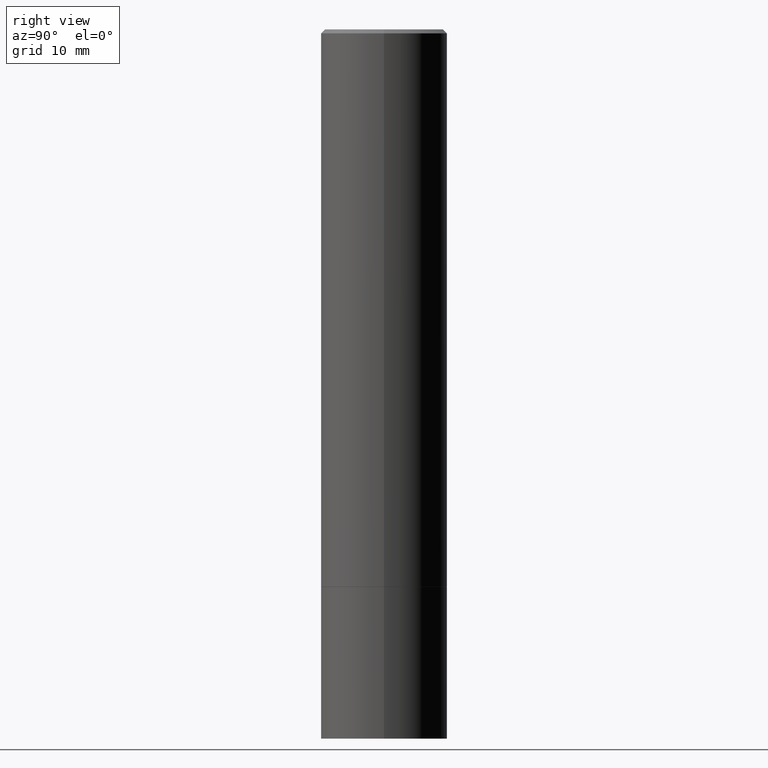
[diagram: clean part render]
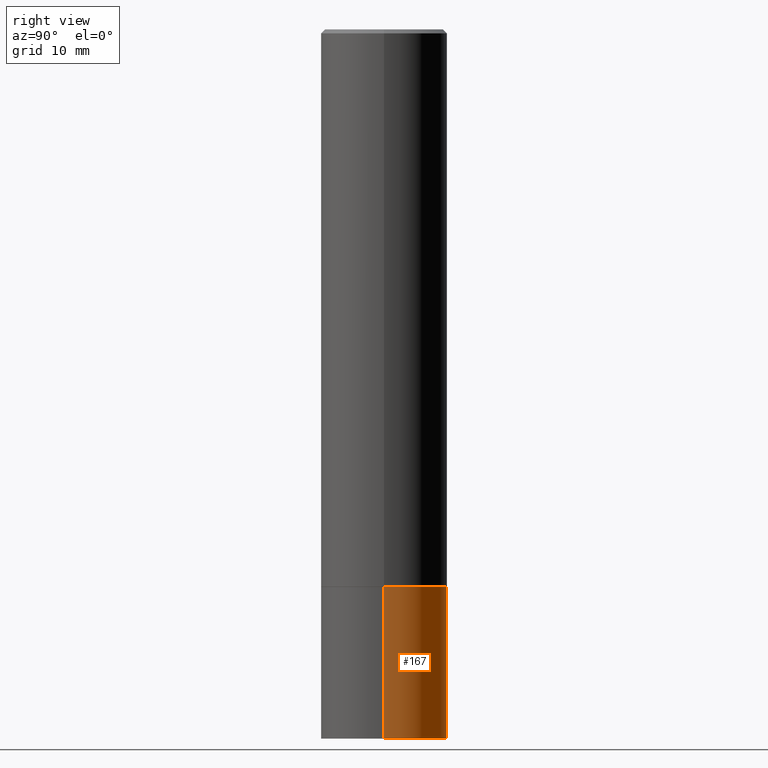
[diagram: same view with one face highlighted and labeled with its STEP entity id]
A machine part, right view. The second image highlights one B-rep face of the part: STEP entity #167.
In plain terms, the highlighted cylindrical surface (partial cylindrical patch) has radius 7.9375 mm, axis along (-0, 0, 1).
Its self-contained STEP definition (entity closure, byte-faithful):
#5 = LINE ( 'NONE', #54, #44 ) ;
#8 = DIRECTION ( 'NONE',  ( 1.000000000000000000, -6.982962677686266711E-15, 4.876176775795936353E-29 ) ) ;
#21 = DIRECTION ( 'NONE',  ( -2.445468806185136597E-29, 3.491481338843145583E-15, 1.000000000000000000 ) ) ;
#25 = DIRECTION ( 'NONE',  ( -2.445468806185136597E-29, 3.491481338843145583E-15, 1.000000000000000000 ) ) ;
#31 = VERTEX_POINT ( 'NONE', #268 ) ;
#44 = VECTOR ( 'NONE', #349, 39.37007874015748143 ) ;
#51 = CARTESIAN_POINT ( 'NONE',  ( 0.3125000000000000000, -2.182175836776958347E-15, 1.523805242436230075E-29 ) ) ;
#54 = CARTESIAN_POINT ( 'NONE',  ( -0.3125000000000000000, 2.220446049250313081E-15, -1.537167215704658232E-29 ) ) ;
#61 = EDGE_CURVE ( 'NONE', #215, #296, #137, .T. ) ;
#62 = ORIENTED_EDGE ( 'NONE', *, *, #171, .F. ) ;
#72 = CIRCLE ( 'NONE', #275, 0.3125000000000000000 ) ;
#77 = FACE_OUTER_BOUND ( 'NONE', #182, .T. ) ;
#84 = EDGE_CURVE ( 'NONE', #215, #31, #72, .T. ) ;
#93 = ORIENTED_EDGE ( 'NONE', *, *, #84, .T. ) ;
#96 = DIRECTION ( 'NONE',  ( -2.445468806185136597E-29, 3.491481338843145583E-15, 1.000000000000000000 ) ) ;
#98 = ORIENTED_EDGE ( 'NONE', *, *, #328, .T. ) ;
#111 = DIRECTION ( 'NONE',  ( 1.000000000000000000, -6.982962677686269077E-15, 0.000000000000000000 ) ) ;
#128 = DIRECTION ( 'NONE',  ( 1.000000000000000000, -6.982962677686269077E-15, 0.000000000000000000 ) ) ;
#137 = LINE ( 'NONE', #51, #266 ) ;
#167 = ADVANCED_FACE ( 'NONE', ( #77 ), #304, .T. ) ;
#171 = EDGE_CURVE ( 'NONE', #296, #294, #175, .T. ) ;
#175 = CIRCLE ( 'NONE', #314, 0.3125000000000000000 ) ;
#182 = EDGE_LOOP ( 'NONE', ( #93, #98, #62, #219 ) ) ;
#184 = CARTESIAN_POINT ( 'NONE',  ( 6.725039217009124520E-29, -9.601573681818649859E-15, -2.750000000000000000 ) ) ;
#188 = CARTESIAN_POINT ( 'NONE',  ( 0.3125000000000000000, -1.440236052272796769E-14, -3.500000000000000000 ) ) ;
#200 = CARTESIAN_POINT ( 'NONE',  ( 8.559140821647976968E-29, -1.222018468595100934E-14, -3.500000000000000000 ) ) ;
#215 = VERTEX_POINT ( 'NONE', #188 ) ;
#218 = CARTESIAN_POINT ( 'NONE',  ( 0.3125000000000000000, -1.178374951859560978E-14, -2.750000000000000000 ) ) ;
#219 = ORIENTED_EDGE ( 'NONE', *, *, #61, .F. ) ;
#233 = DIRECTION ( 'NONE',  ( -2.445468806185136877E-29, 3.491481338843145188E-15, 1.000000000000000000 ) ) ;
#266 = VECTOR ( 'NONE', #233, 39.37007874015748143 ) ;
#268 = CARTESIAN_POINT ( 'NONE',  ( -0.3125000000000000000, -8.690433134634516520E-15, -3.500000000000000000 ) ) ;
#270 = AXIS2_PLACEMENT_3D ( 'NONE', #281, #21, #8 ) ;
#275 = AXIS2_PLACEMENT_3D ( 'NONE', #200, #25, #111 ) ;
#281 = CARTESIAN_POINT ( 'NONE',  ( 0.000000000000000000, 0.000000000000000000, 0.000000000000000000 ) ) ;
#294 = VERTEX_POINT ( 'NONE', #295 ) ;
#295 = CARTESIAN_POINT ( 'NONE',  ( -0.3125000000000000000, -8.690433134634516520E-15, -2.750000000000000000 ) ) ;
#296 = VERTEX_POINT ( 'NONE', #218 ) ;
#304 = CYLINDRICAL_SURFACE ( 'NONE', #270, 0.3125000000000000000 ) ;
#314 = AXIS2_PLACEMENT_3D ( 'NONE', #184, #96, #128 ) ;
#328 = EDGE_CURVE ( 'NONE', #31, #294, #5, .T. ) ;
#349 = DIRECTION ( 'NONE',  ( -2.445468806185136877E-29, 3.491481338843145188E-15, 1.000000000000000000 ) ) ;